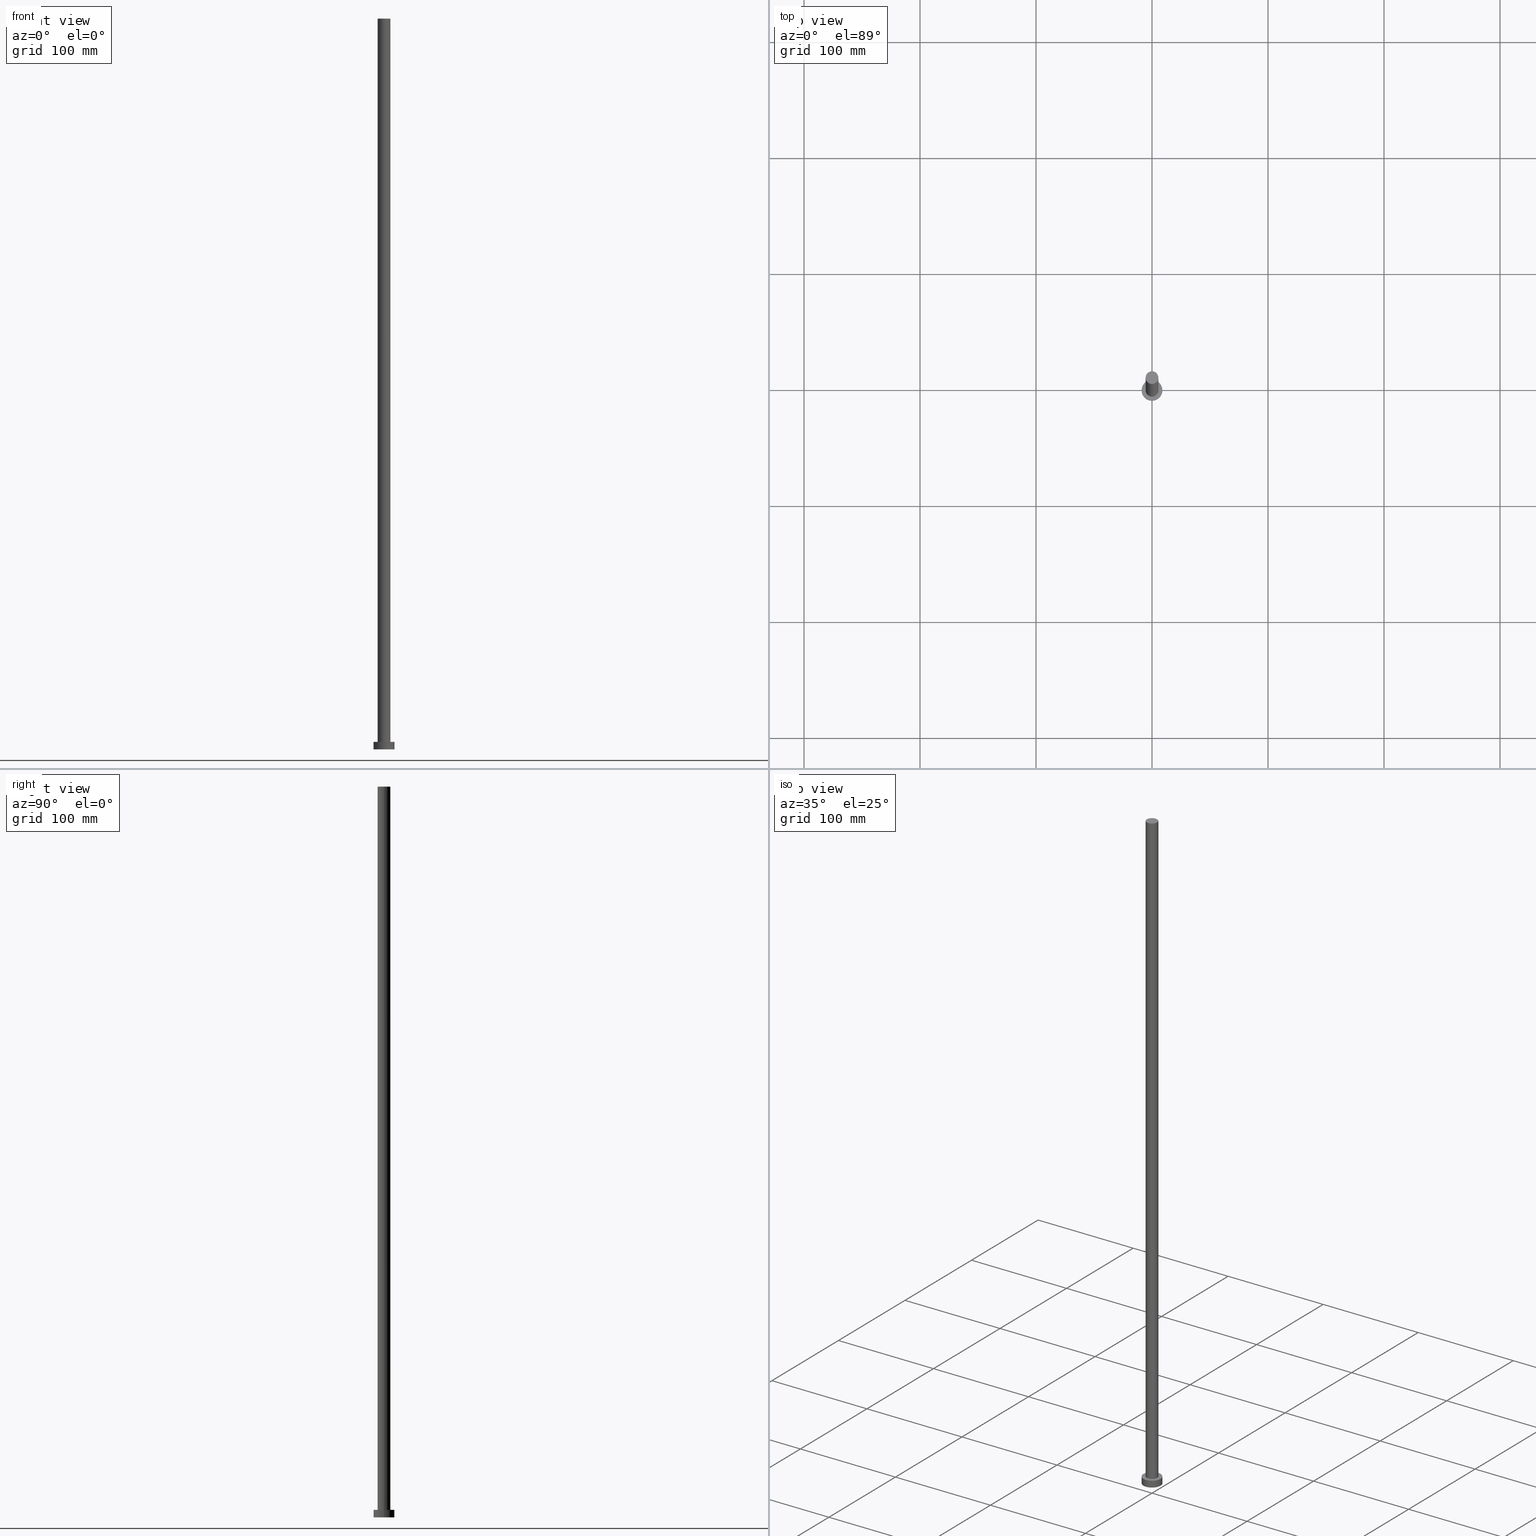
[diagram: canonical four-view strip — front | top / right | iso, engineering-drawing reading convention]
A machine part, canonical four-view strip (front | top / right | iso — engineering-drawing reading convention). The complete STEP part file that produces these views, byte-faithful:
ISO-10303-21;
HEADER;
FILE_DESCRIPTION (( 'STEP AP203' ),
    '1' );
FILE_NAME ('c2a4.STEP',
    '2023-02-13T12:18:57',
    ( '' ),
    ( '' ),
    'SwSTEP 2.0',
    'SolidWorks 2019',
    '' );
FILE_SCHEMA (( 'CONFIG_CONTROL_DESIGN' ));
ENDSEC;

DATA;
#1 = ADVANCED_BREP_SHAPE_REPRESENTATION ( 'c2a4', ( #103, #253 ), #4 ) ;
#2 = CARTESIAN_POINT ( 'NONE',  ( -5.500000000000000000, 0.000000000000000000, 630.0000000000000000 ) ) ;
#3 = VERTEX_POINT ( 'NONE', #216 ) ;
#4 =( GEOMETRIC_REPRESENTATION_CONTEXT ( 3 ) GLOBAL_UNCERTAINTY_ASSIGNED_CONTEXT ( ( #220 ) ) GLOBAL_UNIT_ASSIGNED_CONTEXT ( ( #210, #8, #132 ) ) REPRESENTATION_CONTEXT ( 'NONE', 'WORKASPACE' ) );
#5 = CC_DESIGN_SECURITY_CLASSIFICATION ( #232, ( #175 ) ) ;
#6 = FACE_OUTER_BOUND ( 'NONE', #196, .T. ) ;
#7 = CC_DESIGN_PERSON_AND_ORGANIZATION_ASSIGNMENT ( #156, #43, ( #164 ) ) ;
#8 =( NAMED_UNIT ( * ) PLANE_ANGLE_UNIT ( ) SI_UNIT ( $, .RADIAN. ) );
#9 = CIRCLE ( 'NONE', #45, 5.500000000000000000 ) ;
#10 = EDGE_LOOP ( 'NONE', ( #87, #236 ) ) ;
#11 = CARTESIAN_POINT ( 'NONE',  ( -9.000000000000000000, 0.000000000000000000, 6.500000000000000000 ) ) ;
#12 = DIRECTION ( 'NONE',  ( 1.000000000000000000, 0.000000000000000000, -0.000000000000000000 ) ) ;
#13 = APPROVAL_STATUS ( 'not_yet_approved' ) ;
#14 = LINE ( 'NONE', #18, #94 ) ;
#15 = AXIS2_PLACEMENT_3D ( 'NONE', #25, #23, #48 ) ;
#16 = ORIENTED_EDGE ( 'NONE', *, *, #160, .T. ) ;
#17 = DATE_AND_TIME ( #22, #146 ) ;
#18 = CARTESIAN_POINT ( 'NONE',  ( 5.500000000000000000, 6.735557395310441037E-16, 630.0000000000000000 ) ) ;
#19 = CARTESIAN_POINT ( 'NONE',  ( 0.000000000000000000, 0.000000000000000000, 630.0000000000000000 ) ) ;
#20 = COORDINATED_UNIVERSAL_TIME_OFFSET ( 1, 0, .AHEAD. ) ;
#21 = AXIS2_PLACEMENT_3D ( 'NONE', #242, #174, #224 ) ;
#22 = CALENDAR_DATE ( 2023, 13, 2 ) ;
#23 = DIRECTION ( 'NONE',  ( 0.000000000000000000, 0.000000000000000000, 1.000000000000000000 ) ) ;
#24 = LINE ( 'NONE', #110, #117 ) ;
#25 = CARTESIAN_POINT ( 'NONE',  ( 0.000000000000000000, 0.000000000000000000, 6.500000000000000000 ) ) ;
#26 = ADVANCED_FACE ( 'NONE', ( #36 ), #134, .T. ) ;
#27 = CIRCLE ( 'NONE', #183, 9.000000000000000000 ) ;
#28 = CC_DESIGN_PERSON_AND_ORGANIZATION_ASSIGNMENT ( #217, #75, ( #175 ) ) ;
#29 = PLANE ( 'NONE',  #39 ) ;
#30 = EDGE_CURVE ( 'NONE', #93, #225, #185, .T. ) ;
#31 = ORIENTED_EDGE ( 'NONE', *, *, #125, .F. ) ;
#32 = CYLINDRICAL_SURFACE ( 'NONE', #223, 5.500000000000000000 ) ;
#33 = DIRECTION ( 'NONE',  ( 0.000000000000000000, 0.000000000000000000, 1.000000000000000000 ) ) ;
#34 = CARTESIAN_POINT ( 'NONE',  ( 0.000000000000000000, 0.000000000000000000, 630.0000000000000000 ) ) ;
#35 = DIRECTION ( 'NONE',  ( 1.000000000000000000, 0.000000000000000000, 0.000000000000000000 ) ) ;
#36 = FACE_OUTER_BOUND ( 'NONE', #58, .T. ) ;
#37 = ADVANCED_FACE ( 'NONE', ( #122 ), #157, .T. ) ;
#38 = SECURITY_CLASSIFICATION_LEVEL ( 'unclassified' ) ;
#39 = AXIS2_PLACEMENT_3D ( 'NONE', #166, #244, #12 ) ;
#40 = DIRECTION ( 'NONE',  ( -1.000000000000000000, 0.000000000000000000, 0.000000000000000000 ) ) ;
#41 = APPROVAL_ROLE ( '' ) ;
#42 = ADVANCED_FACE ( 'NONE', ( #100 ), #32, .T. ) ;
#43 = PERSON_AND_ORGANIZATION_ROLE ( 'creator' ) ;
#44 = LINE ( 'NONE', #2, #105 ) ;
#45 = AXIS2_PLACEMENT_3D ( 'NONE', #158, #140, #54 ) ;
#46 = DIRECTION ( 'NONE',  ( 1.000000000000000000, 0.000000000000000000, 0.000000000000000000 ) ) ;
#47 = ORIENTED_EDGE ( 'NONE', *, *, #160, .F. ) ;
#48 = DIRECTION ( 'NONE',  ( 1.000000000000000000, 0.000000000000000000, 0.000000000000000000 ) ) ;
#49 = APPROVAL ( #13, 'NEUR�EN�' ) ;
#50 = VERTEX_POINT ( 'NONE', #231 ) ;
#51 = CARTESIAN_POINT ( 'NONE',  ( 9.000000000000000000, 1.102182119232617517E-15, 6.500000000000000000 ) ) ;
#52 = CARTESIAN_POINT ( 'NONE',  ( 0.000000000000000000, 0.000000000000000000, 6.500000000000000000 ) ) ;
#53 = EDGE_CURVE ( 'NONE', #50, #86, #9, .T. ) ;
#54 = DIRECTION ( 'NONE',  ( 1.000000000000000000, 0.000000000000000000, 0.000000000000000000 ) ) ;
#55 = CARTESIAN_POINT ( 'NONE',  ( 0.000000000000000000, 0.000000000000000000, 0.000000000000000000 ) ) ;
#56 = AXIS2_PLACEMENT_3D ( 'NONE', #97, #74, #154 ) ;
#57 = CC_DESIGN_APPROVAL ( #49, ( #164 ) ) ;
#58 = EDGE_LOOP ( 'NONE', ( #31, #89, #112, #163 ) ) ;
#59 = PERSON_AND_ORGANIZATION ( #167, #145 ) ;
#60 = EDGE_LOOP ( 'NONE', ( #113, #116, #182, #246 ) ) ;
#61 = APPROVAL_ROLE ( '' ) ;
#62 = DESIGN_CONTEXT ( 'detailed design', #106, 'design' ) ;
#63 = APPROVAL_ROLE ( '' ) ;
#64 = AXIS2_PLACEMENT_3D ( 'NONE', #76, #178, #228 ) ;
#65 = APPROVAL_PERSON_ORGANIZATION ( #126, #255, #41 ) ;
#66 = CARTESIAN_POINT ( 'NONE',  ( 0.000000000000000000, 0.000000000000000000, 630.0000000000000000 ) ) ;
#67 = CIRCLE ( 'NONE', #208, 9.000000000000000000 ) ;
#68 = APPROVAL_PERSON_ORGANIZATION ( #137, #49, #63 ) ;
#69 = DIRECTION ( 'NONE',  ( 1.000000000000000000, 0.000000000000000000, 0.000000000000000000 ) ) ;
#70 = DIRECTION ( 'NONE',  ( 1.000000000000000000, 0.000000000000000000, 0.000000000000000000 ) ) ;
#71 = CARTESIAN_POINT ( 'NONE',  ( -9.000000000000000000, 0.000000000000000000, 6.500000000000000000 ) ) ;
#72 = ORIENTED_EDGE ( 'NONE', *, *, #204, .T. ) ;
#73 = EDGE_CURVE ( 'NONE', #85, #3, #202, .T. ) ;
#74 = DIRECTION ( 'NONE',  ( 0.000000000000000000, 0.000000000000000000, 1.000000000000000000 ) ) ;
#75 = PERSON_AND_ORGANIZATION_ROLE ( 'design_supplier' ) ;
#76 = CARTESIAN_POINT ( 'NONE',  ( 0.000000000000000000, 0.000000000000000000, 6.500000000000000000 ) ) ;
#77 = CALENDAR_DATE ( 2023, 13, 2 ) ;
#78 = DATE_AND_TIME ( #77, #240 ) ;
#79 = DIRECTION ( 'NONE',  ( 1.000000000000000000, 0.000000000000000000, 0.000000000000000000 ) ) ;
#80 = EDGE_CURVE ( 'NONE', #168, #205, #27, .T. ) ;
#81 = PLANE ( 'NONE',  #171 ) ;
#82 = EDGE_CURVE ( 'NONE', #205, #168, #67, .T. ) ;
#83 = AXIS2_PLACEMENT_3D ( 'NONE', #92, #189, #88 ) ;
#84 = DIRECTION ( 'NONE',  ( -0.000000000000000000, -0.000000000000000000, -1.000000000000000000 ) ) ;
#85 = VERTEX_POINT ( 'NONE', #161 ) ;
#86 = VERTEX_POINT ( 'NONE', #184 ) ;
#87 = ORIENTED_EDGE ( 'NONE', *, *, #73, .F. ) ;
#88 = DIRECTION ( 'NONE',  ( 1.000000000000000000, 0.000000000000000000, 0.000000000000000000 ) ) ;
#89 = ORIENTED_EDGE ( 'NONE', *, *, #80, .F. ) ;
#90 = DIRECTION ( 'NONE',  ( -0.000000000000000000, -0.000000000000000000, -1.000000000000000000 ) ) ;
#91 = EDGE_CURVE ( 'NONE', #86, #93, #14, .T. ) ;
#92 = CARTESIAN_POINT ( 'NONE',  ( 0.000000000000000000, 0.000000000000000000, 630.0000000000000000 ) ) ;
#93 = VERTEX_POINT ( 'NONE', #102 ) ;
#94 = VECTOR ( 'NONE', #198, 1000.000000000000000 ) ;
#95 = CALENDAR_DATE ( 2023, 13, 2 ) ;
#96 = CC_DESIGN_APPROVAL ( #255, ( #175 ) ) ;
#97 = CARTESIAN_POINT ( 'NONE',  ( 0.000000000000000000, 0.000000000000000000, 6.500000000000000000 ) ) ;
#98 = APPLICATION_PROTOCOL_DEFINITION ( 'international standard', 'config_control_design', 1994, #106 ) ;
#99 = EDGE_CURVE ( 'NONE', #225, #93, #130, .T. ) ;
#100 = FACE_OUTER_BOUND ( 'NONE', #60, .T. ) ;
#101 = COORDINATED_UNIVERSAL_TIME_OFFSET ( 1, 0, .AHEAD. ) ;
#102 = CARTESIAN_POINT ( 'NONE',  ( 5.500000000000000000, 6.735557395310441037E-16, 6.500000000000000000 ) ) ;
#103 = MANIFOLD_SOLID_BREP ( 'P�idat vysunut�m3', #213 ) ;
#104 = DATE_AND_TIME ( #155, #194 ) ;
#105 = VECTOR ( 'NONE', #203, 1000.000000000000000 ) ;
#106 = APPLICATION_CONTEXT ( 'configuration controlled 3d designs of mechanical parts and assemblies' ) ;
#107 = CC_DESIGN_DATE_AND_TIME_ASSIGNMENT ( #248, #221, ( #164 ) ) ;
#108 = FACE_OUTER_BOUND ( 'NONE', #249, .T. ) ;
#109 = AXIS2_PLACEMENT_3D ( 'NONE', #52, #90, #227 ) ;
#110 = CARTESIAN_POINT ( 'NONE',  ( 9.000000000000000000, 1.102182119232617517E-15, 6.500000000000000000 ) ) ;
#111 = DIRECTION ( 'NONE',  ( 0.000000000000000000, 0.000000000000000000, 1.000000000000000000 ) ) ;
#112 = ORIENTED_EDGE ( 'NONE', *, *, #144, .T. ) ;
#113 = ORIENTED_EDGE ( 'NONE', *, *, #91, .F. ) ;
#114 = CYLINDRICAL_SURFACE ( 'NONE', #109, 9.000000000000000000 ) ;
#115 = FACE_OUTER_BOUND ( 'NONE', #10, .T. ) ;
#116 = ORIENTED_EDGE ( 'NONE', *, *, #53, .F. ) ;
#117 = VECTOR ( 'NONE', #84, 1000.000000000000000 ) ;
#118 = EDGE_LOOP ( 'NONE', ( #151, #186, #72, #173 ) ) ;
#119 = EDGE_CURVE ( 'NONE', #50, #225, #44, .T. ) ;
#120 = APPROVAL_STATUS ( 'not_yet_approved' ) ;
#121 = PERSON_AND_ORGANIZATION ( #167, #145 ) ;
#122 = FACE_OUTER_BOUND ( 'NONE', #206, .T. ) ;
#123 = COORDINATED_UNIVERSAL_TIME_OFFSET ( 1, 0, .AHEAD. ) ;
#124 = CARTESIAN_POINT ( 'NONE',  ( 0.000000000000000000, 0.000000000000000000, 6.500000000000000000 ) ) ;
#125 = EDGE_CURVE ( 'NONE', #205, #3, #24, .T. ) ;
#126 = PERSON_AND_ORGANIZATION ( #167, #145 ) ;
#127 = AXIS2_PLACEMENT_3D ( 'NONE', #153, #226, #70 ) ;
#128 = CC_DESIGN_PERSON_AND_ORGANIZATION_ASSIGNMENT ( #59, #200, ( #175 ) ) ;
#129 = ORIENTED_EDGE ( 'NONE', *, *, #82, .T. ) ;
#130 = CIRCLE ( 'NONE', #15, 5.500000000000000000 ) ;
#131 = ADVANCED_FACE ( 'NONE', ( #108 ), #81, .T. ) ;
#132 =( NAMED_UNIT ( * ) SI_UNIT ( $, .STERADIAN. ) SOLID_ANGLE_UNIT ( ) );
#133 = DIRECTION ( 'NONE',  ( 0.000000000000000000, 0.000000000000000000, 1.000000000000000000 ) ) ;
#134 = CYLINDRICAL_SURFACE ( 'NONE', #64, 9.000000000000000000 ) ;
#135 = VECTOR ( 'NONE', #152, 1000.000000000000000 ) ;
#136 = APPLICATION_PROTOCOL_DEFINITION ( 'international standard', 'config_control_design', 1994, #142 ) ;
#137 = PERSON_AND_ORGANIZATION ( #167, #145 ) ;
#138 = APPROVAL_DATE_TIME ( #104, #148 ) ;
#139 = DIRECTION ( 'NONE',  ( 0.000000000000000000, 0.000000000000000000, 1.000000000000000000 ) ) ;
#140 = DIRECTION ( 'NONE',  ( 0.000000000000000000, 0.000000000000000000, 1.000000000000000000 ) ) ;
#141 = APPROVAL_DATE_TIME ( #78, #49 ) ;
#142 = APPLICATION_CONTEXT ( 'configuration controlled 3d designs of mechanical parts and assemblies' ) ;
#143 = LOCAL_TIME ( 13, 18, 57.00000000000000000, #20 ) ;
#144 = EDGE_CURVE ( 'NONE', #168, #85, #212, .T. ) ;
#145 = ORGANIZATION ( 'NEUR�EN�', 'NEUR�EN�', '' ) ;
#146 = LOCAL_TIME ( 13, 18, 57.00000000000000000, #101 ) ;
#147 = FACE_OUTER_BOUND ( 'NONE', #118, .T. ) ;
#148 = APPROVAL ( #237, 'NEUR�EN�' ) ;
#149 = ORIENTED_EDGE ( 'NONE', *, *, #53, .T. ) ;
#150 = PLANE ( 'NONE',  #21 ) ;
#151 = ORIENTED_EDGE ( 'NONE', *, *, #82, .F. ) ;
#152 = DIRECTION ( 'NONE',  ( -0.000000000000000000, -0.000000000000000000, -1.000000000000000000 ) ) ;
#153 = CARTESIAN_POINT ( 'NONE',  ( 0.000000000000000000, 0.000000000000000000, 0.000000000000000000 ) ) ;
#154 = DIRECTION ( 'NONE',  ( 1.000000000000000000, 0.000000000000000000, 0.000000000000000000 ) ) ;
#155 = CALENDAR_DATE ( 2023, 13, 2 ) ;
#156 = PERSON_AND_ORGANIZATION ( #167, #145 ) ;
#157 = CYLINDRICAL_SURFACE ( 'NONE', #243, 5.500000000000000000 ) ;
#158 = CARTESIAN_POINT ( 'NONE',  ( 0.000000000000000000, 0.000000000000000000, 630.0000000000000000 ) ) ;
#159 = DATE_AND_TIME ( #95, #209 ) ;
#160 = EDGE_CURVE ( 'NONE', #86, #50, #222, .T. ) ;
#161 = CARTESIAN_POINT ( 'NONE',  ( -9.000000000000000000, 0.000000000000000000, 0.000000000000000000 ) ) ;
#162 = CIRCLE ( 'NONE', #127, 9.000000000000000000 ) ;
#163 = ORIENTED_EDGE ( 'NONE', *, *, #73, .T. ) ;
#164 = PRODUCT_DEFINITION ( 'NEZN�M�', '', #175, #62 ) ;
#165 = ORIENTED_EDGE ( 'NONE', *, *, #80, .T. ) ;
#166 = CARTESIAN_POINT ( 'NONE',  ( 0.000000000000000000, 0.000000000000000000, 6.500000000000000000 ) ) ;
#167 = PERSON ( 'NEUR�EN�', 'NEUR�EN�', 'NEUR�EN�', ('NEUR�EN�'), ('NEUR�EN�'), ('NEUR�EN�') ) ;
#168 = VERTEX_POINT ( 'NONE', #71 ) ;
#169 = FACE_BOUND ( 'NONE', #245, .T. ) ;
#170 = PRODUCT_DEFINITION_SHAPE ( 'NONE', 'NONE',  #164 ) ;
#171 = AXIS2_PLACEMENT_3D ( 'NONE', #66, #133, #188 ) ;
#172 = ADVANCED_FACE ( 'NONE', ( #169, #6 ), #29, .T. ) ;
#173 = ORIENTED_EDGE ( 'NONE', *, *, #144, .F. ) ;
#174 = DIRECTION ( 'NONE',  ( 0.000000000000000000, 0.000000000000000000, 1.000000000000000000 ) ) ;
#175 = PRODUCT_DEFINITION_FORMATION_WITH_SPECIFIED_SOURCE ( 'LIBOVOLN�', '', #230, .NOT_KNOWN. ) ;
#176 = APPROVAL_DATE_TIME ( #159, #255 ) ;
#177 = ADVANCED_FACE ( 'NONE', ( #115 ), #150, .F. ) ;
#178 = DIRECTION ( 'NONE',  ( -0.000000000000000000, -0.000000000000000000, -1.000000000000000000 ) ) ;
#179 = COORDINATED_UNIVERSAL_TIME_OFFSET ( 1, 0, .AHEAD. ) ;
#180 = DIRECTION ( 'NONE',  ( -1.000000000000000000, 0.000000000000000000, 0.000000000000000000 ) ) ;
#181 = PERSON_AND_ORGANIZATION ( #167, #145 ) ;
#182 = ORIENTED_EDGE ( 'NONE', *, *, #119, .T. ) ;
#183 = AXIS2_PLACEMENT_3D ( 'NONE', #238, #207, #69 ) ;
#184 = CARTESIAN_POINT ( 'NONE',  ( 5.500000000000000000, 6.735557395310441037E-16, 630.0000000000000000 ) ) ;
#185 = CIRCLE ( 'NONE', #56, 5.500000000000000000 ) ;
#186 = ORIENTED_EDGE ( 'NONE', *, *, #125, .T. ) ;
#187 = CC_DESIGN_PERSON_AND_ORGANIZATION_ASSIGNMENT ( #233, #251, ( #230 ) ) ;
#188 = DIRECTION ( 'NONE',  ( 1.000000000000000000, 0.000000000000000000, -0.000000000000000000 ) ) ;
#189 = DIRECTION ( 'NONE',  ( 0.000000000000000000, 0.000000000000000000, 1.000000000000000000 ) ) ;
#190 = ORIENTED_EDGE ( 'NONE', *, *, #30, .F. ) ;
#191 = CC_DESIGN_APPROVAL ( #148, ( #232 ) ) ;
#192 = CC_DESIGN_PERSON_AND_ORGANIZATION_ASSIGNMENT ( #121, #195, ( #232 ) ) ;
#193 = MECHANICAL_CONTEXT ( 'NONE', #142, 'mechanical' ) ;
#194 = LOCAL_TIME ( 13, 18, 57.00000000000000000, #179 ) ;
#195 = PERSON_AND_ORGANIZATION_ROLE ( 'classification_officer' ) ;
#196 = EDGE_LOOP ( 'NONE', ( #165, #129 ) ) ;
#197 = CALENDAR_DATE ( 2023, 13, 2 ) ;
#198 = DIRECTION ( 'NONE',  ( -0.000000000000000000, -0.000000000000000000, -1.000000000000000000 ) ) ;
#199 = ORIENTED_EDGE ( 'NONE', *, *, #99, .F. ) ;
#200 = PERSON_AND_ORGANIZATION_ROLE ( 'creator' ) ;
#201 = APPROVAL_PERSON_ORGANIZATION ( #181, #148, #61 ) ;
#202 = CIRCLE ( 'NONE', #252, 9.000000000000000000 ) ;
#203 = DIRECTION ( 'NONE',  ( -0.000000000000000000, -0.000000000000000000, -1.000000000000000000 ) ) ;
#204 = EDGE_CURVE ( 'NONE', #3, #85, #162, .T. ) ;
#205 = VERTEX_POINT ( 'NONE', #51 ) ;
#206 = EDGE_LOOP ( 'NONE', ( #47, #247, #241, #211 ) ) ;
#207 = DIRECTION ( 'NONE',  ( 0.000000000000000000, 0.000000000000000000, 1.000000000000000000 ) ) ;
#208 = AXIS2_PLACEMENT_3D ( 'NONE', #124, #139, #79 ) ;
#209 = LOCAL_TIME ( 13, 18, 57.00000000000000000, #254 ) ;
#210 =( LENGTH_UNIT ( ) NAMED_UNIT ( * ) SI_UNIT ( .MILLI., .METRE. ) );
#211 = ORIENTED_EDGE ( 'NONE', *, *, #119, .F. ) ;
#212 = LINE ( 'NONE', #11, #135 ) ;
#213 = CLOSED_SHELL ( 'NONE', ( #37, #229, #26, #172, #177, #42, #131 ) ) ;
#214 = CARTESIAN_POINT ( 'NONE',  ( 0.000000000000000000, 0.000000000000000000, 0.000000000000000000 ) ) ;
#215 = CARTESIAN_POINT ( 'NONE',  ( -5.500000000000000000, 0.000000000000000000, 6.500000000000000000 ) ) ;
#216 = CARTESIAN_POINT ( 'NONE',  ( 9.000000000000000000, 1.102182119232617517E-15, 0.000000000000000000 ) ) ;
#217 = PERSON_AND_ORGANIZATION ( #167, #145 ) ;
#218 = DIRECTION ( 'NONE',  ( -0.000000000000000000, -0.000000000000000000, -1.000000000000000000 ) ) ;
#219 = SHAPE_DEFINITION_REPRESENTATION ( #170, #1 ) ;
#220 = UNCERTAINTY_MEASURE_WITH_UNIT (LENGTH_MEASURE( 1.000000000000000082E-05 ), #210, 'distance_accuracy_value', 'NONE');
#221 = DATE_TIME_ROLE ( 'creation_date' ) ;
#222 = CIRCLE ( 'NONE', #83, 5.500000000000000000 ) ;
#223 = AXIS2_PLACEMENT_3D ( 'NONE', #19, #218, #180 ) ;
#224 = DIRECTION ( 'NONE',  ( 1.000000000000000000, 0.000000000000000000, -0.000000000000000000 ) ) ;
#225 = VERTEX_POINT ( 'NONE', #215 ) ;
#226 = DIRECTION ( 'NONE',  ( 0.000000000000000000, 0.000000000000000000, 1.000000000000000000 ) ) ;
#227 = DIRECTION ( 'NONE',  ( -1.000000000000000000, 0.000000000000000000, 0.000000000000000000 ) ) ;
#228 = DIRECTION ( 'NONE',  ( -1.000000000000000000, 0.000000000000000000, 0.000000000000000000 ) ) ;
#229 = ADVANCED_FACE ( 'NONE', ( #147 ), #114, .T. ) ;
#230 = PRODUCT ( 'c2a4', 'c2a4', '', ( #193 ) ) ;
#231 = CARTESIAN_POINT ( 'NONE',  ( -5.500000000000000000, 0.000000000000000000, 630.0000000000000000 ) ) ;
#232 = SECURITY_CLASSIFICATION ( '', '', #38 ) ;
#233 = PERSON_AND_ORGANIZATION ( #167, #145 ) ;
#234 = DIRECTION ( 'NONE',  ( -0.000000000000000000, -0.000000000000000000, -1.000000000000000000 ) ) ;
#235 = DATE_TIME_ROLE ( 'classification_date' ) ;
#236 = ORIENTED_EDGE ( 'NONE', *, *, #204, .F. ) ;
#237 = APPROVAL_STATUS ( 'not_yet_approved' ) ;
#238 = CARTESIAN_POINT ( 'NONE',  ( 0.000000000000000000, 0.000000000000000000, 6.500000000000000000 ) ) ;
#239 = CC_DESIGN_DATE_AND_TIME_ASSIGNMENT ( #17, #235, ( #232 ) ) ;
#240 = LOCAL_TIME ( 13, 18, 57.00000000000000000, #123 ) ;
#241 = ORIENTED_EDGE ( 'NONE', *, *, #30, .T. ) ;
#242 = CARTESIAN_POINT ( 'NONE',  ( 0.000000000000000000, 0.000000000000000000, 0.000000000000000000 ) ) ;
#243 = AXIS2_PLACEMENT_3D ( 'NONE', #34, #234, #40 ) ;
#244 = DIRECTION ( 'NONE',  ( 0.000000000000000000, 0.000000000000000000, 1.000000000000000000 ) ) ;
#245 = EDGE_LOOP ( 'NONE', ( #199, #190 ) ) ;
#246 = ORIENTED_EDGE ( 'NONE', *, *, #99, .T. ) ;
#247 = ORIENTED_EDGE ( 'NONE', *, *, #91, .T. ) ;
#248 = DATE_AND_TIME ( #197, #143 ) ;
#249 = EDGE_LOOP ( 'NONE', ( #149, #16 ) ) ;
#250 = PRODUCT_RELATED_PRODUCT_CATEGORY ( 'detail', '', ( #230 ) ) ;
#251 = PERSON_AND_ORGANIZATION_ROLE ( 'design_owner' ) ;
#252 = AXIS2_PLACEMENT_3D ( 'NONE', #214, #111, #46 ) ;
#253 = AXIS2_PLACEMENT_3D ( 'NONE', #55, #33, #35 ) ;
#254 = COORDINATED_UNIVERSAL_TIME_OFFSET ( 1, 0, .AHEAD. ) ;
#255 = APPROVAL ( #120, 'NEUR�EN�' ) ;
ENDSEC;
END-ISO-10303-21;
